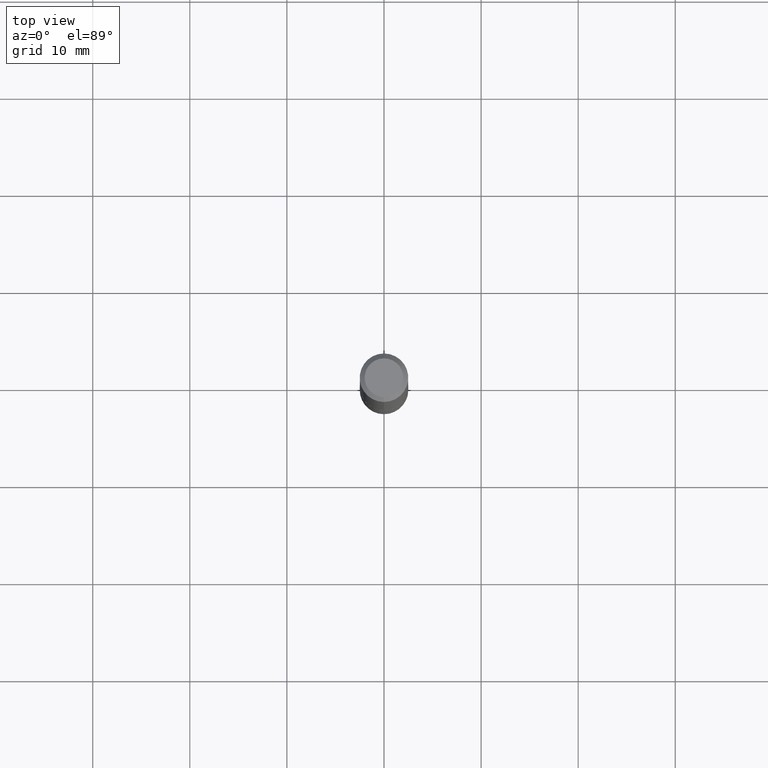
[diagram: clean part render]
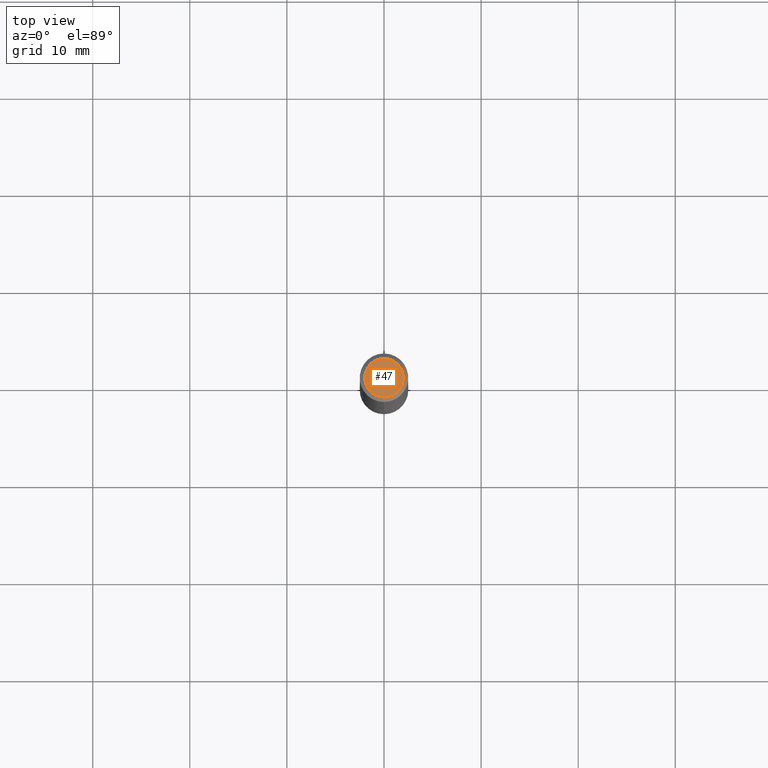
[diagram: same view with one face highlighted and labeled with its STEP entity id]
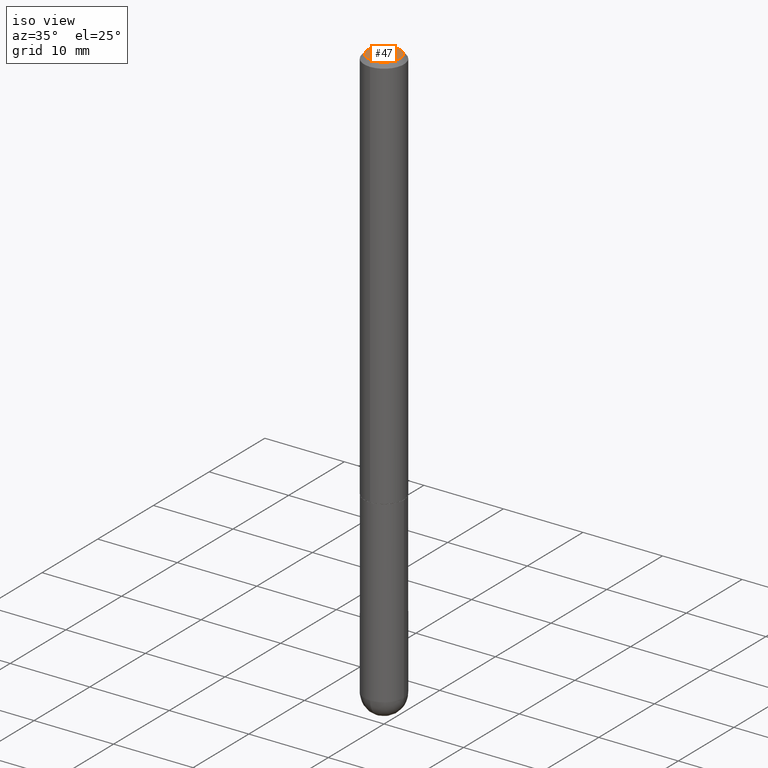
[diagram: same view with one face highlighted and labeled with its STEP entity id]
A machine part, top view. The second image highlights one B-rep face of the part: STEP entity #47.
A second angle (iso view) of the same face is appended — the face is thin or edge-on in the first view.
In plain terms, the highlighted planar face has unit normal (0, -0, -1).
Its self-contained STEP definition (entity closure, byte-faithful):
#1 = CARTESIAN_POINT ( 'NONE',  ( -1.550680728280366901E-45, 2.201055714348533762E-31, 6.322583305672671877E-17 ) ) ;
#42 = EDGE_CURVE ( 'NONE', #57, #197, #63, .T. ) ;
#47 = ADVANCED_FACE ( 'NONE', ( #107 ), #199, .F. ) ;
#57 = VERTEX_POINT ( 'NONE', #284 ) ;
#63 = CIRCLE ( 'NONE', #123, 0.07844999999999993645 ) ;
#66 = DIRECTION ( 'NONE',  ( -2.452606242276133797E-29, 3.481260124123203654E-15, 1.000000000000000000 ) ) ;
#70 = DIRECTION ( 'NONE',  ( -6.982962677686265922E-15, -1.000000000000000000, 3.481260124123203654E-15 ) ) ;
#107 = FACE_OUTER_BOUND ( 'NONE', #223, .T. ) ;
#119 = DIRECTION ( 'NONE',  ( -2.452606242276133797E-29, 3.481260124123203654E-15, 1.000000000000000000 ) ) ;
#123 = AXIS2_PLACEMENT_3D ( 'NONE', #293, #66, #70 ) ;
#152 = AXIS2_PLACEMENT_3D ( 'NONE', #1, #119, #242 ) ;
#192 = CARTESIAN_POINT ( 'NONE',  ( 6.176430488413502480E-16, 0.07844999999999993645, -2.098790236807383565E-16 ) ) ;
#197 = VERTEX_POINT ( 'NONE', #192 ) ;
#199 = PLANE ( 'NONE',  #320 ) ;
#202 = ORIENTED_EDGE ( 'NONE', *, *, #42, .T. ) ;
#223 = EDGE_LOOP ( 'NONE', ( #373, #202 ) ) ;
#242 = DIRECTION ( 'NONE',  ( -6.982962677686265922E-15, -1.000000000000000000, 3.481260124123203654E-15 ) ) ;
#278 = EDGE_CURVE ( 'NONE', #197, #57, #311, .T. ) ;
#284 = CARTESIAN_POINT ( 'NONE',  ( -6.068110479028913825E-16, -0.07844999999999993645, 3.363306897941918187E-16 ) ) ;
#293 = CARTESIAN_POINT ( 'NONE',  ( -1.550680728280366901E-45, 2.201055714348533762E-31, 6.322583305672671877E-17 ) ) ;
#294 = DIRECTION ( 'NONE',  ( 6.982962677686265922E-15, 1.000000000000000000, -3.481260124123204048E-15 ) ) ;
#311 = CIRCLE ( 'NONE', #152, 0.07844999999999993645 ) ;
#320 = AXIS2_PLACEMENT_3D ( 'NONE', #334, #333, #294 ) ;
#333 = DIRECTION ( 'NONE',  ( 2.452606242276133237E-29, -3.481260124123204048E-15, -1.000000000000000000 ) ) ;
#334 = CARTESIAN_POINT ( 'NONE',  ( 5.478134220644871470E-16, 0.07844999999999993645, -2.414919402091017344E-16 ) ) ;
#373 = ORIENTED_EDGE ( 'NONE', *, *, #278, .T. ) ;